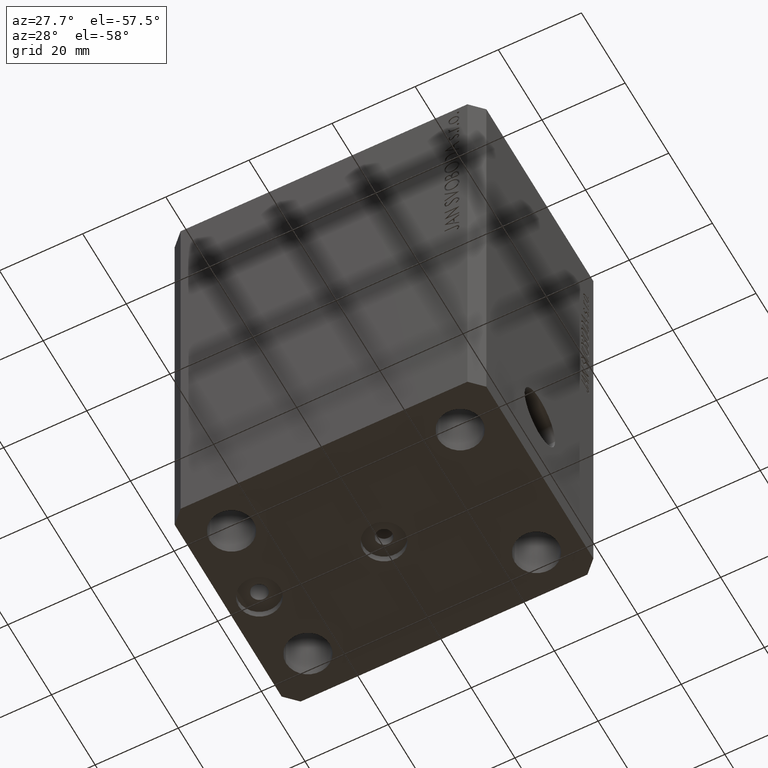
[diagram: clean part render]
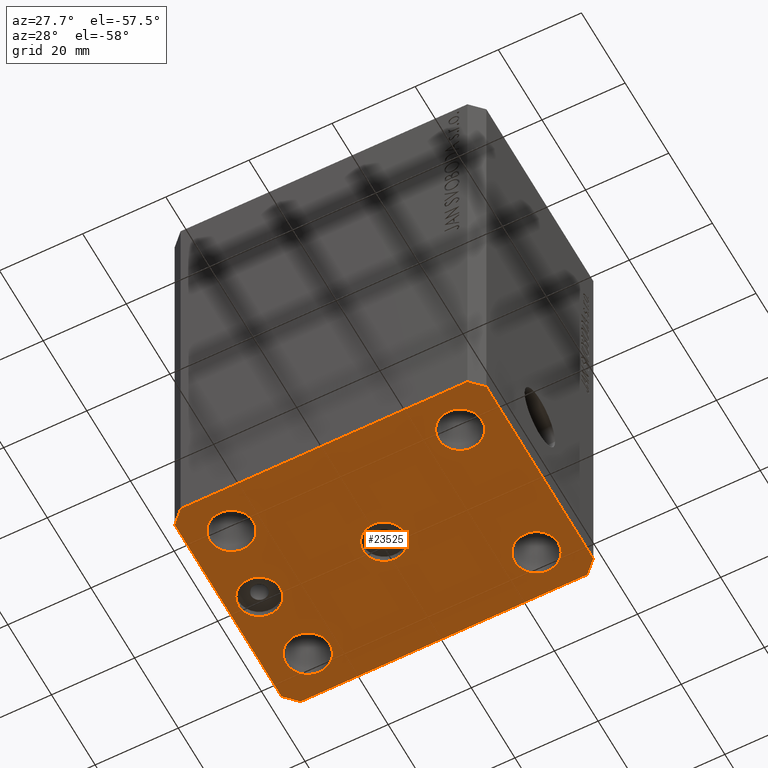
[diagram: same view with one face highlighted and labeled with its STEP entity id]
A machine part, auxiliary view. The second image highlights one B-rep face of the part: STEP entity #23525.
In plain terms, the highlighted planar face has unit normal (0, 0, 1).
Its self-contained STEP definition (entity closure, byte-faithful):
#368 = DIRECTION ( 'NONE',  ( 1.000000000000000000, 0.000000000000000000, 0.000000000000000000 ) ) ;
#437 = ORIENTED_EDGE ( 'NONE', *, *, #19498, .F. ) ;
#845 = EDGE_LOOP ( 'NONE', ( #13577, #25758 ) ) ;
#849 = EDGE_LOOP ( 'NONE', ( #22722, #28486 ) ) ;
#868 = FACE_BOUND ( 'NONE', #845, .T. ) ;
#961 = AXIS2_PLACEMENT_3D ( 'NONE', #13626, #10682, #17683 ) ;
#1339 = LINE ( 'NONE', #21875, #21075 ) ;
#1536 = DIRECTION ( 'NONE',  ( -1.000000000000000000, 0.000000000000000000, 0.000000000000000000 ) ) ;
#1614 = VERTEX_POINT ( 'NONE', #26828 ) ;
#1950 = VERTEX_POINT ( 'NONE', #15210 ) ;
#2220 = DIRECTION ( 'NONE',  ( 1.076236605503979380E-14, 1.000000000000000000, 0.000000000000000000 ) ) ;
#2391 = DIRECTION ( 'NONE',  ( 0.000000000000000000, 0.000000000000000000, 1.000000000000000000 ) ) ;
#2835 = LINE ( 'NONE', #41372, #24194 ) ;
#3046 = DIRECTION ( 'NONE',  ( 1.000000000000000000, 0.000000000000000000, -0.000000000000000000 ) ) ;
#3054 = CARTESIAN_POINT ( 'NONE',  ( 34.49999999999999289, -27.49999999999999645, -110.0000000000000000 ) ) ;
#3821 = ORIENTED_EDGE ( 'NONE', *, *, #35061, .F. ) ;
#3861 = DIRECTION ( 'NONE',  ( 0.7071067811865474617, 0.7071067811865474617, 0.000000000000000000 ) ) ;
#3879 = CARTESIAN_POINT ( 'NONE',  ( 22.24999999999999289, -17.50000000000000000, -110.0000000000000000 ) ) ;
#3922 = LINE ( 'NONE', #28518, #23505 ) ;
#3994 = DIRECTION ( 'NONE',  ( 0.000000000000000000, 0.000000000000000000, -1.000000000000000000 ) ) ;
#4240 = FACE_BOUND ( 'NONE', #11889, .T. ) ;
#4250 = EDGE_CURVE ( 'NONE', #39533, #40490, #2835, .T. ) ;
#4253 = CARTESIAN_POINT ( 'NONE',  ( -27.50000000000000000, 17.49999999999999645, -110.0000000000000000 ) ) ;
#4702 = ORIENTED_EDGE ( 'NONE', *, *, #4911, .F. ) ;
#4882 = EDGE_LOOP ( 'NONE', ( #13681, #33277, #437, #42532, #32913, #37960, #38859, #15749 ) ) ;
#4911 = EDGE_CURVE ( 'NONE', #1950, #43871, #16257, .T. ) ;
#5314 = EDGE_CURVE ( 'NONE', #40490, #24415, #3922, .T. ) ;
#5747 = DIRECTION ( 'NONE',  ( 1.000000000000000000, 0.000000000000000000, 0.000000000000000000 ) ) ;
#5817 = ORIENTED_EDGE ( 'NONE', *, *, #22156, .F. ) ;
#5823 = CARTESIAN_POINT ( 'NONE',  ( 37.49999999999999289, -24.50000000000000000, -110.0000000000000000 ) ) ;
#6001 = VECTOR ( 'NONE', #37925, 1000.000000000000114 ) ;
#6180 = AXIS2_PLACEMENT_3D ( 'NONE', #24335, #21638, #14393 ) ;
#6779 = CARTESIAN_POINT ( 'NONE',  ( -5.000000000000000000, 0.000000000000000000, -110.0000000000000000 ) ) ;
#6931 = DIRECTION ( 'NONE',  ( -1.000000000000000000, 0.000000000000000000, 0.000000000000000000 ) ) ;
#6949 = AXIS2_PLACEMENT_3D ( 'NONE', #16454, #12391, #12612 ) ;
#6984 = VERTEX_POINT ( 'NONE', #13350 ) ;
#7204 = EDGE_CURVE ( 'NONE', #43871, #1950, #35023, .T. ) ;
#7266 = CARTESIAN_POINT ( 'NONE',  ( -34.49999999999999289, 27.50000000000000000, -110.0000000000000000 ) ) ;
#7583 = VERTEX_POINT ( 'NONE', #15690 ) ;
#8098 = AXIS2_PLACEMENT_3D ( 'NONE', #8195, #38867, #31656 ) ;
#8147 = EDGE_CURVE ( 'NONE', #12068, #20891, #13372, .T. ) ;
#8195 = CARTESIAN_POINT ( 'NONE',  ( 27.50000000000000000, 17.49999999999999289, -110.0000000000000000 ) ) ;
#8234 = CARTESIAN_POINT ( 'NONE',  ( -37.49999999999999289, -24.50000000000000000, -110.0000000000000000 ) ) ;
#8315 = AXIS2_PLACEMENT_3D ( 'NONE', #4253, #24792, #14628 ) ;
#8931 = CARTESIAN_POINT ( 'NONE',  ( 34.50000000000056843, 27.50000000000000000, -110.0000000000000000 ) ) ;
#8968 = DIRECTION ( 'NONE',  ( 0.000000000000000000, -1.000000000000000000, 0.000000000000000000 ) ) ;
#9202 = EDGE_CURVE ( 'NONE', #43709, #1614, #44379, .T. ) ;
#9385 = AXIS2_PLACEMENT_3D ( 'NONE', #28142, #3994, #6931 ) ;
#9864 = CARTESIAN_POINT ( 'NONE',  ( -27.49999999999999289, -17.50000000000000000, -110.0000000000000000 ) ) ;
#10682 = DIRECTION ( 'NONE',  ( -0.000000000000000000, -0.000000000000000000, -1.000000000000000000 ) ) ;
#11424 = VECTOR ( 'NONE', #18568, 1000.000000000000000 ) ;
#11555 = AXIS2_PLACEMENT_3D ( 'NONE', #20197, #2391, #3046 ) ;
#11889 = EDGE_LOOP ( 'NONE', ( #35265, #21990 ) ) ;
#12068 = VERTEX_POINT ( 'NONE', #3879 ) ;
#12391 = DIRECTION ( 'NONE',  ( 0.000000000000000000, 0.000000000000000000, -1.000000000000000000 ) ) ;
#12612 = DIRECTION ( 'NONE',  ( -1.000000000000000000, 0.000000000000000000, 0.000000000000000000 ) ) ;
#12746 = EDGE_CURVE ( 'NONE', #35193, #36317, #18500, .T. ) ;
#13191 = CIRCLE ( 'NONE', #961, 5.250000000000000888 ) ;
#13350 = CARTESIAN_POINT ( 'NONE',  ( 34.50000000000056843, 27.50000000000000000, -110.0000000000000000 ) ) ;
#13372 = CIRCLE ( 'NONE', #6180, 5.250000000000000888 ) ;
#13577 = ORIENTED_EDGE ( 'NONE', *, *, #17138, .F. ) ;
#13626 = CARTESIAN_POINT ( 'NONE',  ( 27.49999999999999289, -17.50000000000000000, -110.0000000000000000 ) ) ;
#13681 = ORIENTED_EDGE ( 'NONE', *, *, #32022, .F. ) ;
#13904 = DIRECTION ( 'NONE',  ( -0.000000000000000000, -0.000000000000000000, -1.000000000000000000 ) ) ;
#14319 = ORIENTED_EDGE ( 'NONE', *, *, #12746, .F. ) ;
#14393 = DIRECTION ( 'NONE',  ( 1.000000000000000000, 0.000000000000000000, 0.000000000000000000 ) ) ;
#14628 = DIRECTION ( 'NONE',  ( 1.000000000000000000, 0.000000000000000000, 0.000000000000000000 ) ) ;
#15168 = LINE ( 'NONE', #42474, #11424 ) ;
#15210 = CARTESIAN_POINT ( 'NONE',  ( -32.75000000000000000, 17.49999999999999645, -110.0000000000000000 ) ) ;
#15460 = ORIENTED_EDGE ( 'NONE', *, *, #25983, .F. ) ;
#15690 = CARTESIAN_POINT ( 'NONE',  ( -37.49999999999999289, 24.50000000000000000, -110.0000000000000000 ) ) ;
#15702 = LINE ( 'NONE', #8931, #34080 ) ;
#15749 = ORIENTED_EDGE ( 'NONE', *, *, #17970, .F. ) ;
#16002 = AXIS2_PLACEMENT_3D ( 'NONE', #32432, #35360, #1536 ) ;
#16257 = CIRCLE ( 'NONE', #8315, 5.250000000000000888 ) ;
#16454 = CARTESIAN_POINT ( 'NONE',  ( -30.00000000000000000, 0.000000000000000000, -110.0000000000000000 ) ) ;
#16563 = CARTESIAN_POINT ( 'NONE',  ( -22.25000000000000000, 17.49999999999999645, -110.0000000000000000 ) ) ;
#17138 = EDGE_CURVE ( 'NONE', #44504, #31173, #38035, .T. ) ;
#17139 = VERTEX_POINT ( 'NONE', #6779 ) ;
#17683 = DIRECTION ( 'NONE',  ( 1.000000000000000000, 0.000000000000000000, 0.000000000000000000 ) ) ;
#17970 = EDGE_CURVE ( 'NONE', #21608, #7583, #15168, .T. ) ;
#18500 = CIRCLE ( 'NONE', #6949, 4.999999999999997335 ) ;
#18568 = DIRECTION ( 'NONE',  ( -0.7071067811865471286, -0.7071067811865479058, 0.000000000000000000 ) ) ;
#19135 = LINE ( 'NONE', #40327, #39207 ) ;
#19307 = CARTESIAN_POINT ( 'NONE',  ( -34.49999999999998579, -27.49999999999999645, -110.0000000000000000 ) ) ;
#19443 = CARTESIAN_POINT ( 'NONE',  ( 32.74999999999999289, -17.50000000000000000, -110.0000000000000000 ) ) ;
#19498 = EDGE_CURVE ( 'NONE', #23425, #29215, #44158, .T. ) ;
#19642 = CARTESIAN_POINT ( 'NONE',  ( -27.50000000000000000, 17.49999999999999645, -110.0000000000000000 ) ) ;
#19780 = CARTESIAN_POINT ( 'NONE',  ( 32.75000000000000000, 17.49999999999999289, -110.0000000000000000 ) ) ;
#19879 = CARTESIAN_POINT ( 'NONE',  ( -27.49999999999999289, -17.50000000000000000, -110.0000000000000000 ) ) ;
#20197 = CARTESIAN_POINT ( 'NONE',  ( 0.000000000000000000, 0.000000000000000000, -110.0000000000000000 ) ) ;
#20891 = VERTEX_POINT ( 'NONE', #19443 ) ;
#21075 = VECTOR ( 'NONE', #3861, 1000.000000000000114 ) ;
#21407 = FACE_BOUND ( 'NONE', #29084, .T. ) ;
#21608 = VERTEX_POINT ( 'NONE', #7266 ) ;
#21638 = DIRECTION ( 'NONE',  ( -0.000000000000000000, -0.000000000000000000, -1.000000000000000000 ) ) ;
#21875 = CARTESIAN_POINT ( 'NONE',  ( 34.49999999999999289, -27.49999999999999645, -110.0000000000000000 ) ) ;
#21990 = ORIENTED_EDGE ( 'NONE', *, *, #8147, .F. ) ;
#22156 = EDGE_CURVE ( 'NONE', #36317, #35193, #32431, .T. ) ;
#22540 = CIRCLE ( 'NONE', #23257, 5.250000000000000888 ) ;
#22722 = ORIENTED_EDGE ( 'NONE', *, *, #30257, .F. ) ;
#22899 = CARTESIAN_POINT ( 'NONE',  ( 27.50000000000000000, 17.49999999999999289, -110.0000000000000000 ) ) ;
#23257 = AXIS2_PLACEMENT_3D ( 'NONE', #9864, #44369, #368 ) ;
#23402 = VERTEX_POINT ( 'NONE', #27723 ) ;
#23425 = VERTEX_POINT ( 'NONE', #30872 ) ;
#23505 = VECTOR ( 'NONE', #42280, 1000.000000000000000 ) ;
#23525 = ADVANCED_FACE ( 'NONE', ( #36655, #21407, #35141, #4240, #868, #28387, #42152 ), #33730, .F. ) ;
#24194 = VECTOR ( 'NONE', #44327, 1000.000000000000000 ) ;
#24335 = CARTESIAN_POINT ( 'NONE',  ( 27.49999999999999289, -17.50000000000000000, -110.0000000000000000 ) ) ;
#24415 = VERTEX_POINT ( 'NONE', #3054 ) ;
#24480 = CARTESIAN_POINT ( 'NONE',  ( -32.74999999999999289, -17.50000000000000000, -110.0000000000000000 ) ) ;
#24792 = DIRECTION ( 'NONE',  ( -0.000000000000000000, -0.000000000000000000, -1.000000000000000000 ) ) ;
#25758 = ORIENTED_EDGE ( 'NONE', *, *, #30613, .F. ) ;
#25983 = EDGE_CURVE ( 'NONE', #23402, #17139, #39614, .T. ) ;
#26828 = CARTESIAN_POINT ( 'NONE',  ( -22.24999999999999289, -17.50000000000000000, -110.0000000000000000 ) ) ;
#27570 = LINE ( 'NONE', #31156, #6001 ) ;
#27723 = CARTESIAN_POINT ( 'NONE',  ( 5.000000000000000000, 6.123233995736765296E-16, -110.0000000000000000 ) ) ;
#28142 = CARTESIAN_POINT ( 'NONE',  ( -30.00000000000000000, 0.000000000000000000, -110.0000000000000000 ) ) ;
#28387 = FACE_BOUND ( 'NONE', #32402, .T. ) ;
#28486 = ORIENTED_EDGE ( 'NONE', *, *, #9202, .F. ) ;
#28518 = CARTESIAN_POINT ( 'NONE',  ( -34.49999999999998579, -27.49999999999999645, -110.0000000000000000 ) ) ;
#29084 = EDGE_LOOP ( 'NONE', ( #14319, #5817 ) ) ;
#29215 = VERTEX_POINT ( 'NONE', #35171 ) ;
#29894 = DIRECTION ( 'NONE',  ( -0.000000000000000000, -0.000000000000000000, -1.000000000000000000 ) ) ;
#29918 = EDGE_CURVE ( 'NONE', #24415, #23425, #1339, .T. ) ;
#30257 = EDGE_CURVE ( 'NONE', #1614, #43709, #22540, .T. ) ;
#30431 = CIRCLE ( 'NONE', #16002, 5.000000000000000000 ) ;
#30613 = EDGE_CURVE ( 'NONE', #31173, #44504, #31857, .T. ) ;
#30872 = CARTESIAN_POINT ( 'NONE',  ( 37.49999999999999289, -24.50000000000000000, -110.0000000000000000 ) ) ;
#31156 = CARTESIAN_POINT ( 'NONE',  ( 37.50000000000051870, 24.49999999999995381, -110.0000000000000000 ) ) ;
#31173 = VERTEX_POINT ( 'NONE', #31270 ) ;
#31270 = CARTESIAN_POINT ( 'NONE',  ( 22.25000000000000000, 17.49999999999999289, -110.0000000000000000 ) ) ;
#31656 = DIRECTION ( 'NONE',  ( 1.000000000000000000, 0.000000000000000000, 0.000000000000000000 ) ) ;
#31857 = CIRCLE ( 'NONE', #8098, 5.250000000000000888 ) ;
#32022 = EDGE_CURVE ( 'NONE', #6984, #21608, #15702, .T. ) ;
#32112 = AXIS2_PLACEMENT_3D ( 'NONE', #19879, #13904, #39726 ) ;
#32364 = VECTOR ( 'NONE', #2220, 1000.000000000000000 ) ;
#32402 = EDGE_LOOP ( 'NONE', ( #43655, #4702 ) ) ;
#32431 = CIRCLE ( 'NONE', #9385, 4.999999999999997335 ) ;
#32432 = CARTESIAN_POINT ( 'NONE',  ( 0.000000000000000000, 0.000000000000000000, -110.0000000000000000 ) ) ;
#32913 = ORIENTED_EDGE ( 'NONE', *, *, #5314, .F. ) ;
#33277 = ORIENTED_EDGE ( 'NONE', *, *, #37922, .F. ) ;
#33389 = DIRECTION ( 'NONE',  ( 1.000000000000000000, 0.000000000000000000, 0.000000000000000000 ) ) ;
#33529 = DIRECTION ( 'NONE',  ( -1.000000000000000000, 0.000000000000000000, 0.000000000000000000 ) ) ;
#33730 = PLANE ( 'NONE',  #11555 ) ;
#34080 = VECTOR ( 'NONE', #33529, 1000.000000000000000 ) ;
#35023 = CIRCLE ( 'NONE', #36385, 5.250000000000000888 ) ;
#35061 = EDGE_CURVE ( 'NONE', #17139, #23402, #30431, .T. ) ;
#35141 = FACE_BOUND ( 'NONE', #849, .T. ) ;
#35171 = CARTESIAN_POINT ( 'NONE',  ( 37.50000000000051870, 24.49999999999995381, -110.0000000000000000 ) ) ;
#35193 = VERTEX_POINT ( 'NONE', #36692 ) ;
#35265 = ORIENTED_EDGE ( 'NONE', *, *, #37528, .F. ) ;
#35276 = AXIS2_PLACEMENT_3D ( 'NONE', #38615, #39070, #42017 ) ;
#35360 = DIRECTION ( 'NONE',  ( 0.000000000000000000, 0.000000000000000000, -1.000000000000000000 ) ) ;
#36317 = VERTEX_POINT ( 'NONE', #36882 ) ;
#36385 = AXIS2_PLACEMENT_3D ( 'NONE', #19642, #44419, #33389 ) ;
#36655 = FACE_BOUND ( 'NONE', #42626, .T. ) ;
#36692 = CARTESIAN_POINT ( 'NONE',  ( -34.99999999999999289, 0.000000000000000000, -110.0000000000000000 ) ) ;
#36882 = CARTESIAN_POINT ( 'NONE',  ( -25.00000000000000000, 6.123233995736762338E-16, -110.0000000000000000 ) ) ;
#37528 = EDGE_CURVE ( 'NONE', #20891, #12068, #13191, .T. ) ;
#37922 = EDGE_CURVE ( 'NONE', #29215, #6984, #27570, .T. ) ;
#37925 = DIRECTION ( 'NONE',  ( -0.7071067811865364705, 0.7071067811865584529, 0.000000000000000000 ) ) ;
#37960 = ORIENTED_EDGE ( 'NONE', *, *, #4250, .F. ) ;
#38035 = CIRCLE ( 'NONE', #44536, 5.250000000000000888 ) ;
#38615 = CARTESIAN_POINT ( 'NONE',  ( 0.000000000000000000, 0.000000000000000000, -110.0000000000000000 ) ) ;
#38859 = ORIENTED_EDGE ( 'NONE', *, *, #40290, .F. ) ;
#38867 = DIRECTION ( 'NONE',  ( -0.000000000000000000, -0.000000000000000000, -1.000000000000000000 ) ) ;
#39070 = DIRECTION ( 'NONE',  ( 0.000000000000000000, 0.000000000000000000, -1.000000000000000000 ) ) ;
#39207 = VECTOR ( 'NONE', #8968, 1000.000000000000000 ) ;
#39533 = VERTEX_POINT ( 'NONE', #8234 ) ;
#39614 = CIRCLE ( 'NONE', #35276, 5.000000000000000000 ) ;
#39726 = DIRECTION ( 'NONE',  ( 1.000000000000000000, 0.000000000000000000, 0.000000000000000000 ) ) ;
#40290 = EDGE_CURVE ( 'NONE', #7583, #39533, #19135, .T. ) ;
#40327 = CARTESIAN_POINT ( 'NONE',  ( -37.49999999999999289, 24.50000000000000000, -110.0000000000000000 ) ) ;
#40490 = VERTEX_POINT ( 'NONE', #19307 ) ;
#41372 = CARTESIAN_POINT ( 'NONE',  ( -37.49999999999999289, -24.50000000000000000, -110.0000000000000000 ) ) ;
#42017 = DIRECTION ( 'NONE',  ( -1.000000000000000000, 0.000000000000000000, 0.000000000000000000 ) ) ;
#42152 = FACE_OUTER_BOUND ( 'NONE', #4882, .T. ) ;
#42280 = DIRECTION ( 'NONE',  ( 1.000000000000000000, 0.000000000000000000, 0.000000000000000000 ) ) ;
#42474 = CARTESIAN_POINT ( 'NONE',  ( -34.49999999999999289, 27.50000000000000000, -110.0000000000000000 ) ) ;
#42532 = ORIENTED_EDGE ( 'NONE', *, *, #29918, .F. ) ;
#42626 = EDGE_LOOP ( 'NONE', ( #3821, #15460 ) ) ;
#43655 = ORIENTED_EDGE ( 'NONE', *, *, #7204, .F. ) ;
#43709 = VERTEX_POINT ( 'NONE', #24480 ) ;
#43871 = VERTEX_POINT ( 'NONE', #16563 ) ;
#44158 = LINE ( 'NONE', #5823, #32364 ) ;
#44327 = DIRECTION ( 'NONE',  ( 0.7071067811865483499, -0.7071067811865466846, 0.000000000000000000 ) ) ;
#44369 = DIRECTION ( 'NONE',  ( -0.000000000000000000, -0.000000000000000000, -1.000000000000000000 ) ) ;
#44379 = CIRCLE ( 'NONE', #32112, 5.250000000000000888 ) ;
#44419 = DIRECTION ( 'NONE',  ( -0.000000000000000000, -0.000000000000000000, -1.000000000000000000 ) ) ;
#44504 = VERTEX_POINT ( 'NONE', #19780 ) ;
#44536 = AXIS2_PLACEMENT_3D ( 'NONE', #22899, #29894, #5747 ) ;